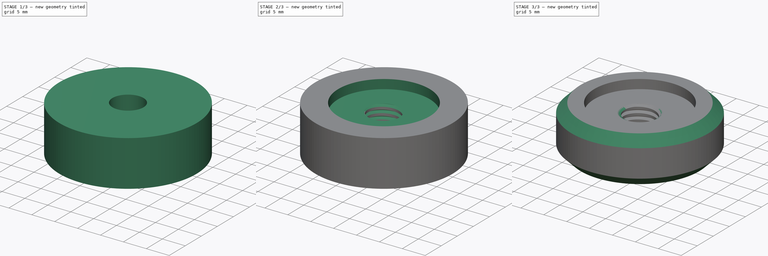
[diagram: build sequence overview — one tinted view per stage of 3, left to right]
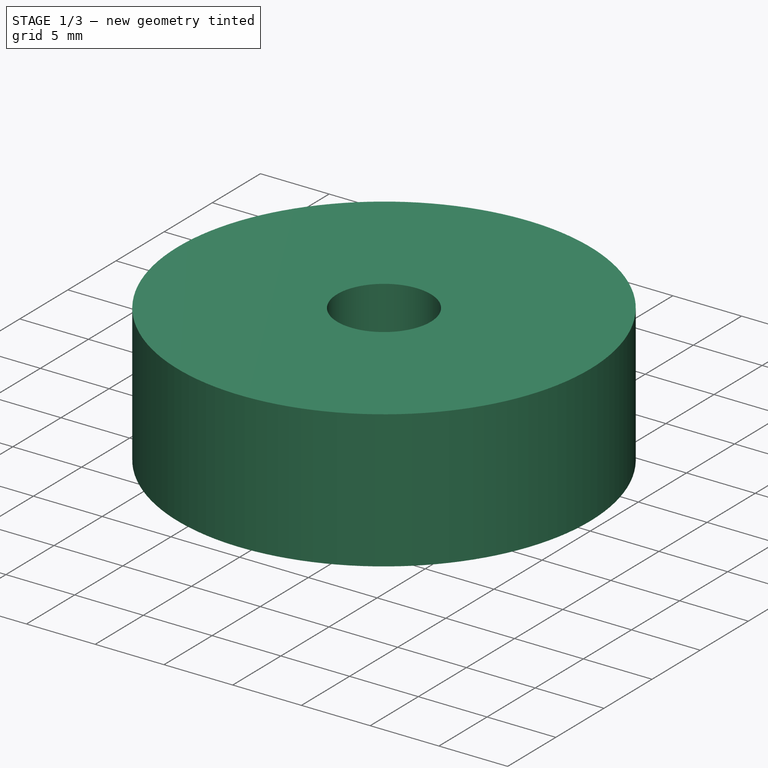
[diagram: stage 1 of 3 — iso view after this stage's code; geometry added in this stage tinted green]
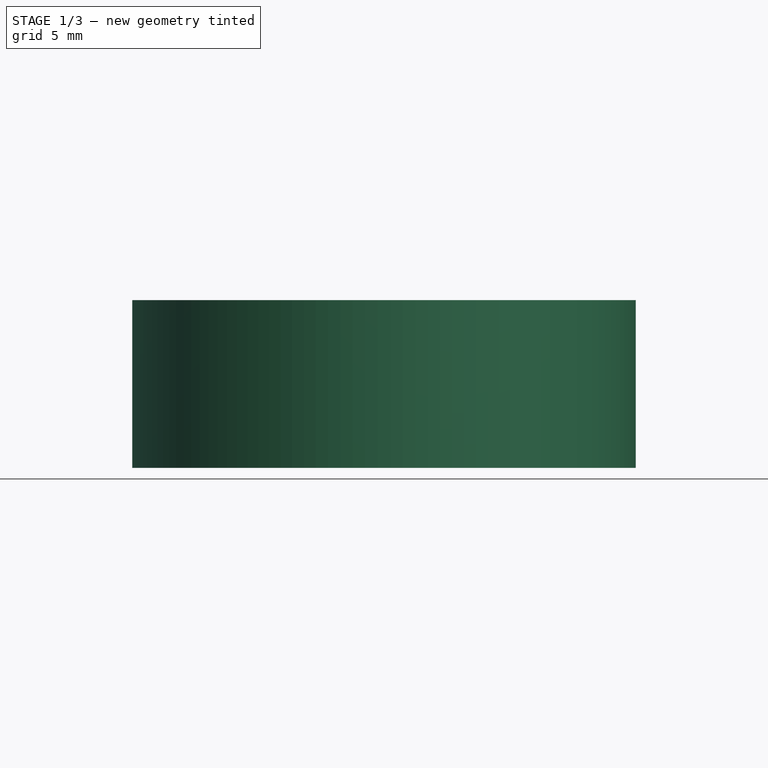
[diagram: stage 1 of 3 — front view after this stage's code; geometry added in this stage tinted green]
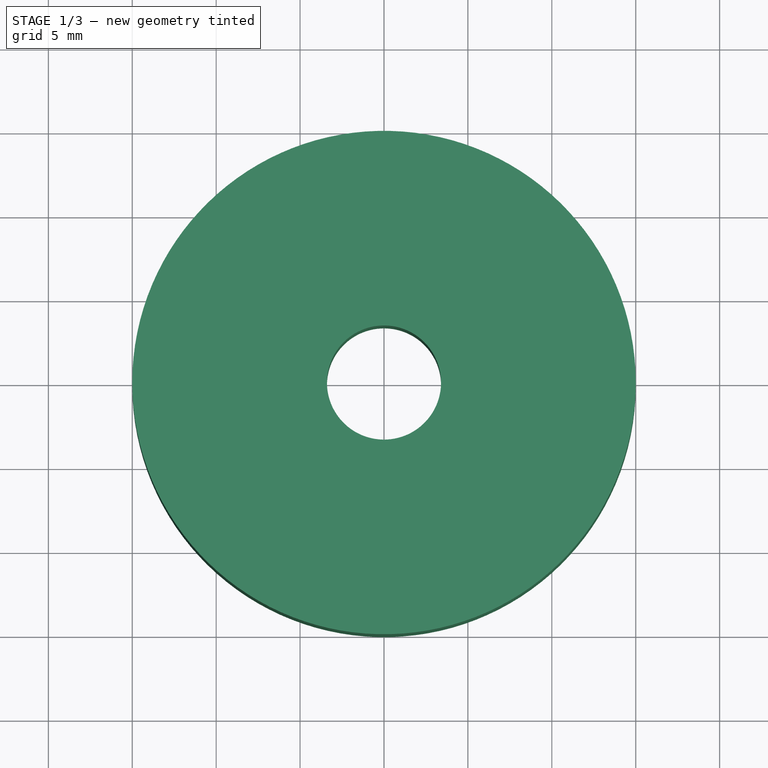
[diagram: stage 1 of 3 — top view after this stage's code; geometry added in this stage tinted green]
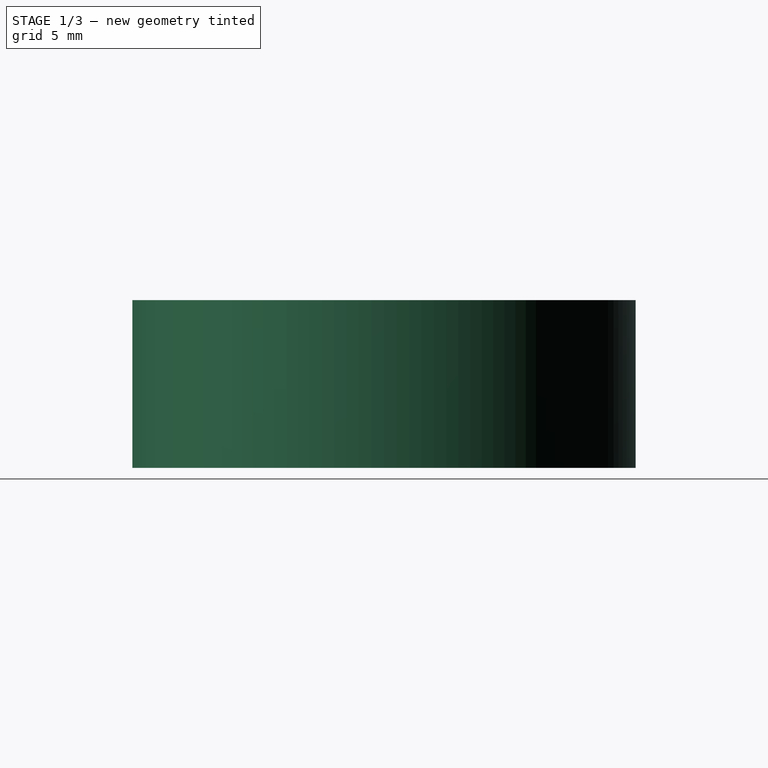
[diagram: stage 1 of 3 — right view after this stage's code; geometry added in this stage tinted green]
FCSTD DOCUMENT  (FreeCAD 0.19R18353 (Git))
Label: Foot-30-a
License: CreativeCommons Attribution
LicenseURL: http://creativecommons.org/licenses/by/4.0/
objects: Sketcher::SketchObject×5, PartDesign::Pocket×2, PartDesign::Pad×1, Part::Helix×1, PartDesign::ShapeBinder×1, PartDesign::SubtractivePipe×1, PartDesign::Groove×1, PartDesign::Chamfer×1, PartDesign::Body×1
note: 19 computed .brp shape members not serialized (recipe doc carries the construction recipe); baked Part::Feature solids carry a one-line shape summary decoded from their .brp

FEATURE [Sketcher::SketchObject] Sketch
  MapMode = 5
  Support = -> [XY_Plane]
  sketch-geometry (1):
    g0: Circle CenterX=0 CenterY=0 CenterZ=0 NormalX=0 NormalY=0 NormalZ=1 AngleXU=0 Radius=15
  constraints (2):
    c: Coincident(g0,g-1)
    c: Diameter(g0) = 30
FEATURE [PartDesign::Pad] Pad
  Length = 10
  Length2 = 100
  Profile = -> Sketch
  Refine = true
  Type = 0
FEATURE [Sketcher::SketchObject] Sketch001
  MapMode = 5
  Placement = pos=(0,0,10) rot=(0,0,1;0rad)
  Support = -> [Pad]
  sketch-geometry (1):
    g0: Circle CenterX=0 CenterY=0 CenterZ=0 NormalX=0 NormalY=0 NormalZ=1 AngleXU=0 Radius=3.4
  constraints (2):
    c: Coincident(g0,g-1)
    c: Diameter(g0) = 6.8
FEATURE [PartDesign::Pocket] Pocket
  BaseFeature = -> Pad
  Length = 5
  Length2 = 100
  Profile = -> Sketch001
  Refine = true
  Type = 1
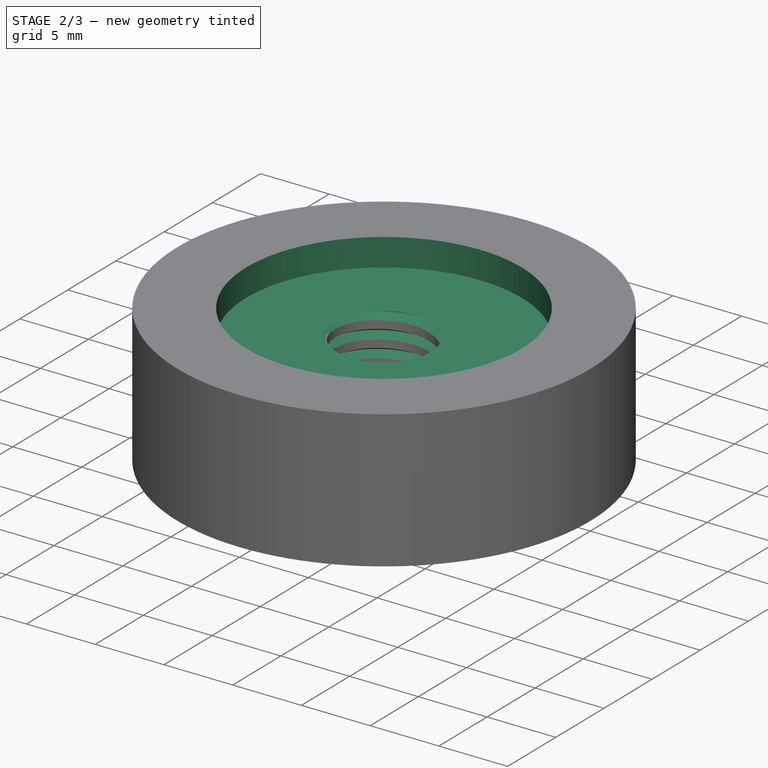
[diagram: stage 2 of 3 — iso view after this stage's code; geometry added in this stage tinted green]
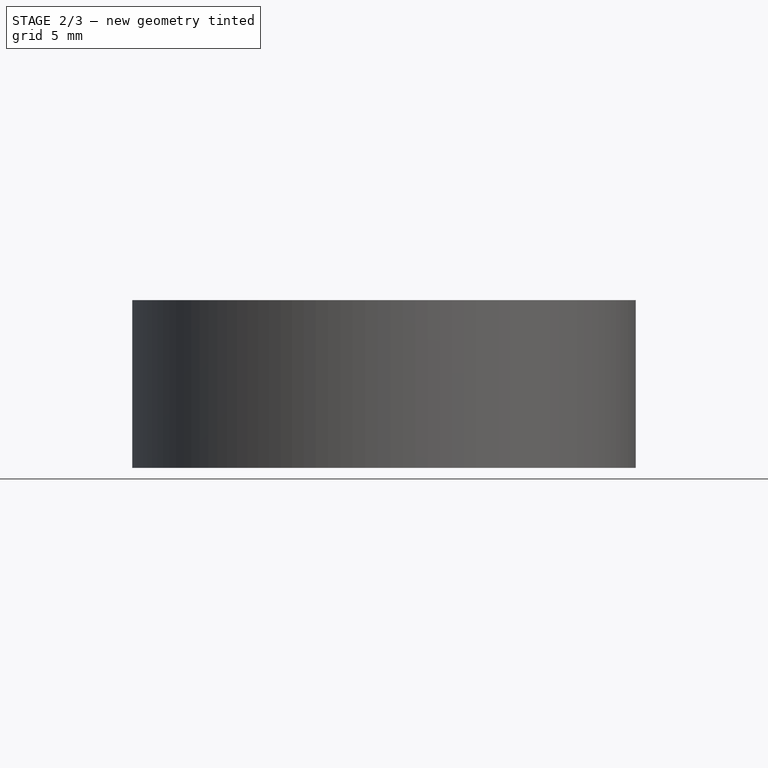
[diagram: stage 2 of 3 — front view after this stage's code; geometry added in this stage tinted green]
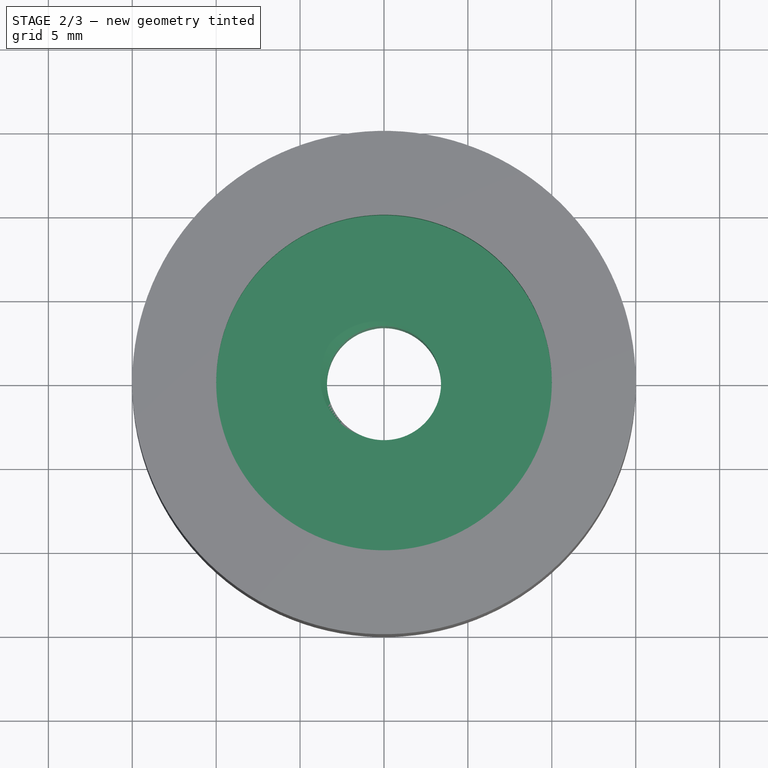
[diagram: stage 2 of 3 — top view after this stage's code; geometry added in this stage tinted green]
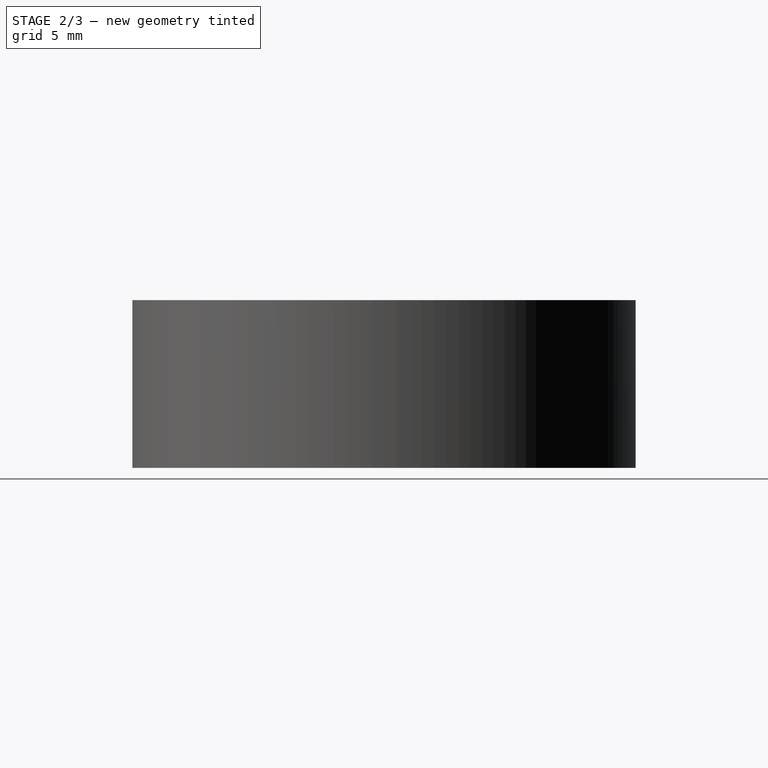
[diagram: stage 2 of 3 — right view after this stage's code; geometry added in this stage tinted green]
FEATURE [Sketcher::SketchObject] Sketch002
  MapMode = 5
  Placement = pos=(0,0,10) rot=(0,0,1;0rad)
  Support = -> [Pocket]
  sketch-geometry (1):
    g0: Circle CenterX=0 CenterY=0 CenterZ=0 NormalX=0 NormalY=0 NormalZ=1 AngleXU=0 Radius=10
  constraints (2):
    c: Coincident(g0,g-1)
    c: Diameter(g0) = 20
FEATURE [PartDesign::Pocket] Pocket001
  BaseFeature = -> Pocket
  Length = 2
  Length2 = 100
  Profile = -> Sketch002
  Refine = true
  Type = 0
FEATURE [Part::Helix] Helix
  Angle = 0
  AttacherType = Attacher::AttachEngine3D
  Height = 20
  LocalCoord = 0
  Pitch = 1.25
  Placement = pos=(0,0,-5) rot=(0,0,1;0rad)
  Radius = 4
  Style = 1
FEATURE [PartDesign::ShapeBinder] ShapeBinder
  Placement = pos=(0,0,-5) rot=(0,0,1;0rad)
  Support = -> [Helix]
  TraceSupport = false
FEATURE [Sketcher::SketchObject] Sketch003
  ExternalGeometry = -> [ShapeBinder]
  MapMode = 5
  Placement = pos=(0,0,0) rot=(1,0,0;1.5708rad)
  Support = -> [XZ_Plane]
  sketch-geometry (4):
    g0: LineSegment StartX=4 StartY=15 StartZ=0 EndX=2.8 EndY=15.6928 EndZ=0
    g1: LineSegment StartX=2.8 StartY=15.6928 StartZ=0 EndX=2.8 EndY=14.3072 EndZ=0
    g2: LineSegment StartX=2.8 StartY=14.3072 StartZ=0 EndX=4 EndY=15 EndZ=0
    g3: Circle [constr] CenterX=3.2 CenterY=15 CenterZ=0 NormalX=0 NormalY=0 NormalZ=1 AngleXU=0 Radius=0.8
  constraints (11):
    c: Coincident(g0,g1)
    c: Coincident(g1,g2)
    c: Coincident(g2,g0)
    c: Equal(g0,g1)
    c: Equal(g0,g2)
    c: PointOnObject(g0,g3)
    c: PointOnObject(g1,g3)
    c: PointOnObject(g2,g3)
    c: Horizontal(g0,g3)
    c: DistanceX(g0,g0) = 1.2
    c: Coincident(g0,g-3)
FEATURE [PartDesign::SubtractivePipe] SubtractivePipe
  AuxilleryCurvelinear = true
  AuxillerySpineTangent = false
  BaseFeature = -> Pocket001
  Binormal = (0,0,0)
  Mode = 2
  Profile = -> Sketch003
  Refine = true
  Spine = -> ShapeBinder
  SpineTangent = false
  Transformation = 0
  Transition = 0
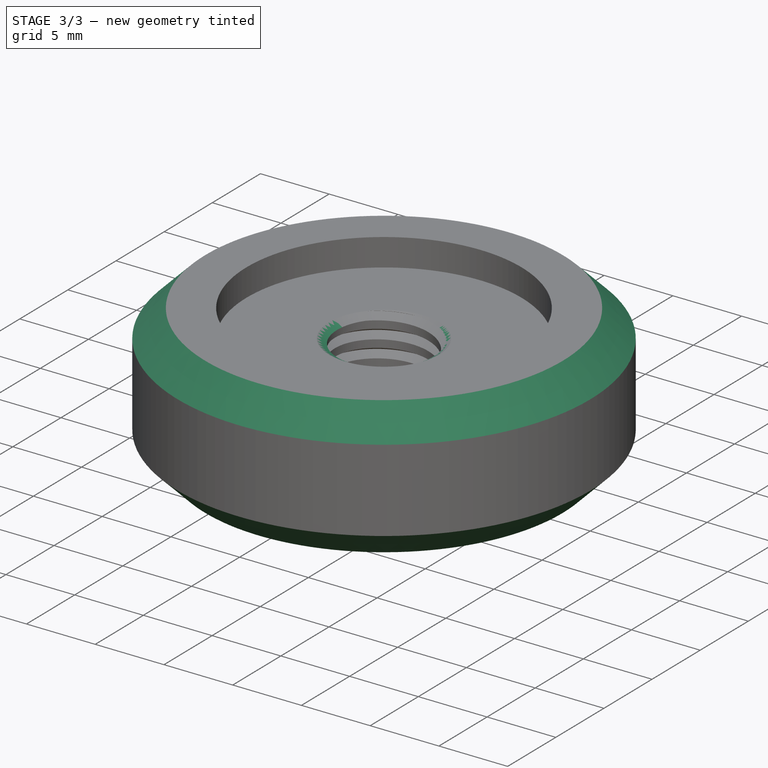
[diagram: stage 3 of 3 — iso view after this stage's code; geometry added in this stage tinted green]
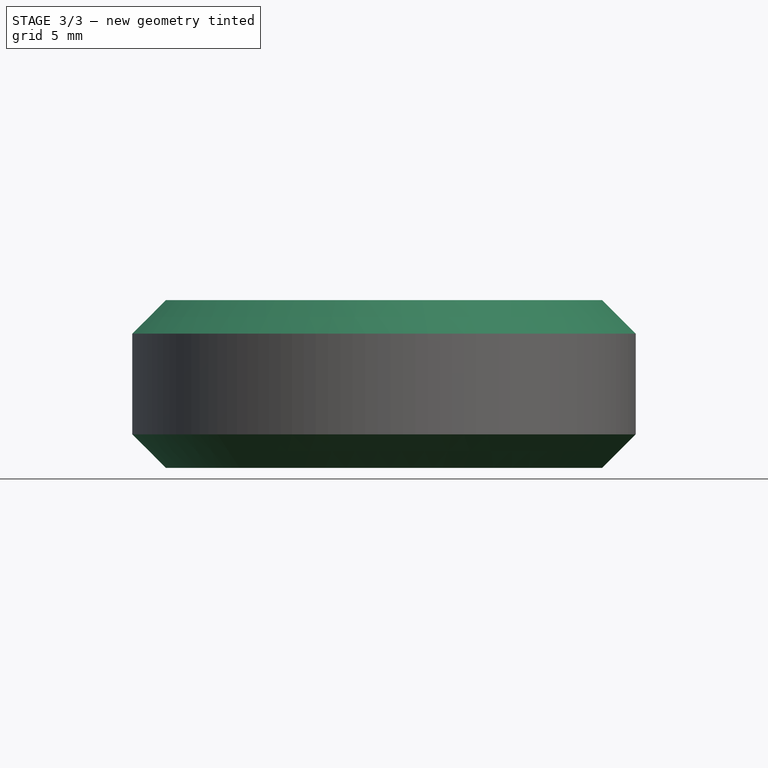
[diagram: stage 3 of 3 — front view after this stage's code; geometry added in this stage tinted green]
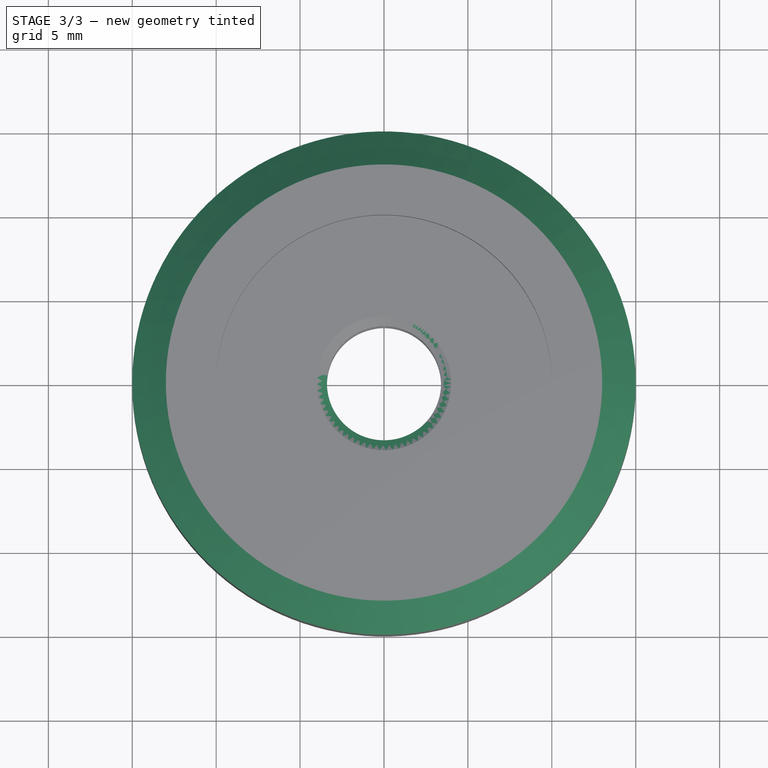
[diagram: stage 3 of 3 — top view after this stage's code; geometry added in this stage tinted green]
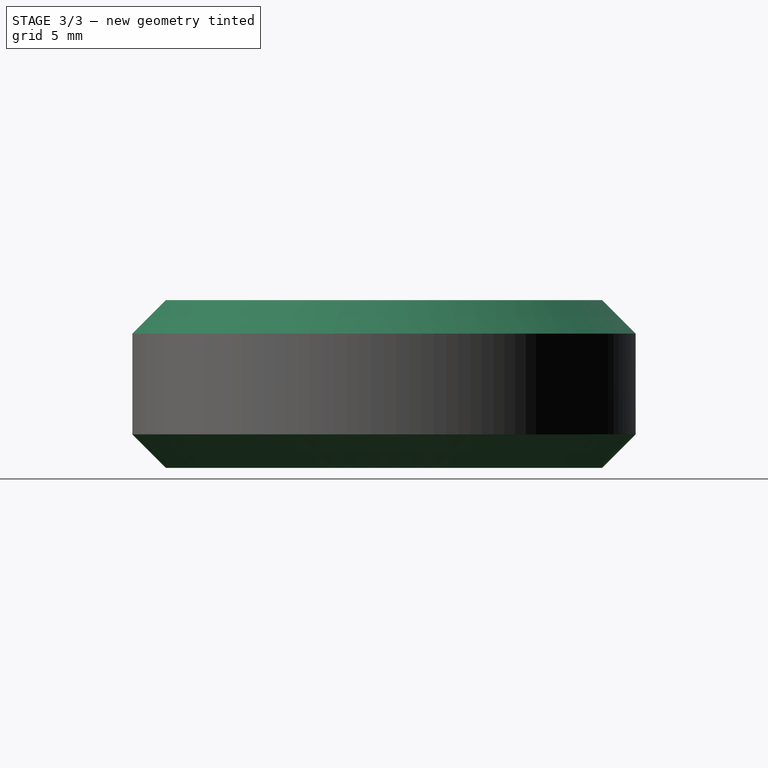
[diagram: stage 3 of 3 — right view after this stage's code; geometry added in this stage tinted green]
FEATURE [Sketcher::SketchObject] Sketch004
  MapMode = 5
  Placement = pos=(0,0,0) rot=(1,0,0;1.5708rad)
  Support = -> [XZ_Plane]
  sketch-geometry (4):
    g0: LineSegment StartX=4 StartY=8 StartZ=0 EndX=2.8 EndY=8.69282 EndZ=0
    g1: LineSegment StartX=2.8 StartY=8.69282 StartZ=0 EndX=2.8 EndY=7.30718 EndZ=0
    g2: LineSegment StartX=2.8 StartY=7.30718 StartZ=0 EndX=4 EndY=8 EndZ=0
    g3: Circle [constr] CenterX=3.2 CenterY=8 CenterZ=0 NormalX=0 NormalY=0 NormalZ=1 AngleXU=0 Radius=0.8
  constraints (12):
    c: Coincident(g0,g1)
    c: Coincident(g1,g2)
    c: Coincident(g2,g0)
    c: Equal(g0,g1)
    c: Equal(g0,g2)
    c: PointOnObject(g0,g3)
    c: PointOnObject(g1,g3)
    c: PointOnObject(g2,g3)
    c: Horizontal(g0,g3)
    c: DistanceX(g0,g0) = 1.2
    c: DistanceX(g-1,g0) = 4
    c: DistanceY(g-1,g0) = 8
FEATURE [PartDesign::Groove] Groove
  Angle = 360
  Axis = (0,2e-16,1)
  Base = (0,0,0)
  BaseFeature = -> SubtractivePipe
  Profile = -> Sketch004
  ReferenceAxis = -> Sketch004 [V_Axis]
  Refine = true
FEATURE [PartDesign::Chamfer] Chamfer
  Base = -> Groove [Edge3,Edge2]
  BaseFeature = -> Groove
  Size = 2
FEATURE [PartDesign::Body] Body
  Group = -> [Sketch,Pad,Sketch001,Pocket,Sketch002,Pocket001,ShapeBinder,Sketch003,SubtractivePipe,Sketch004,Groove,Chamfer]
  Origin = -> Origin
  Tip = -> Chamfer
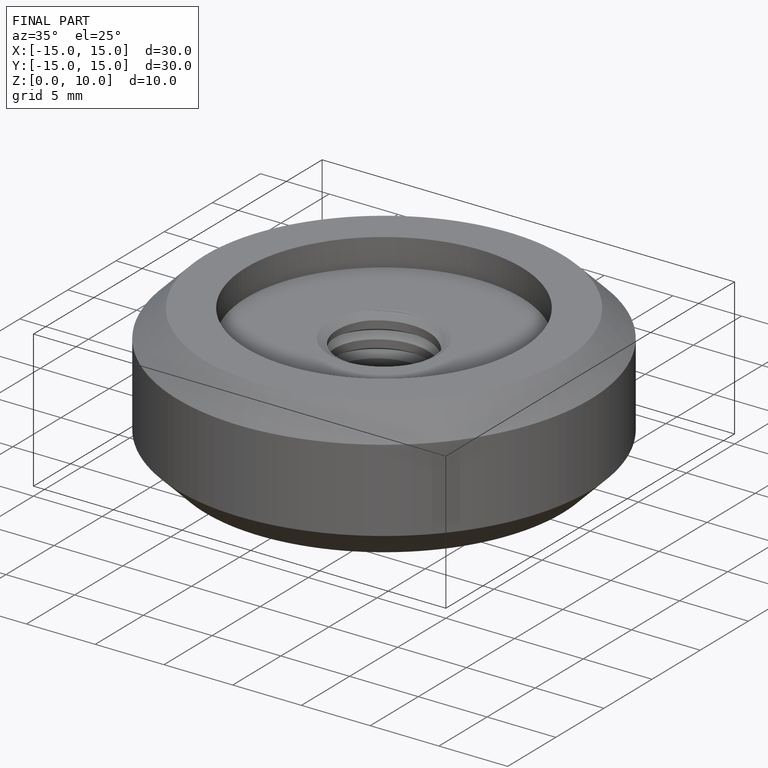
[diagram: finished part — iso view with bounding-box wireframe]
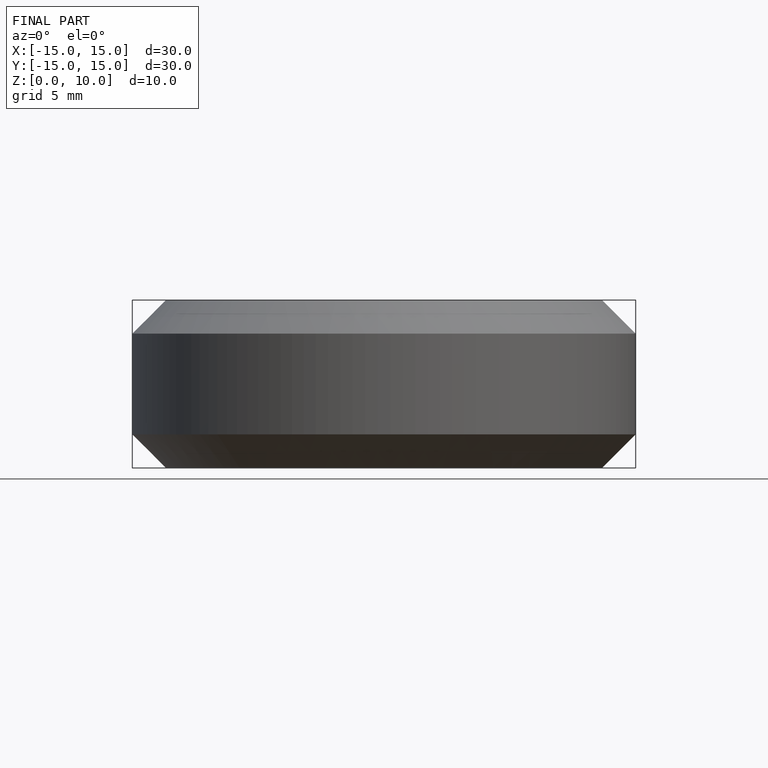
[diagram: finished part — front view with bounding-box wireframe]
